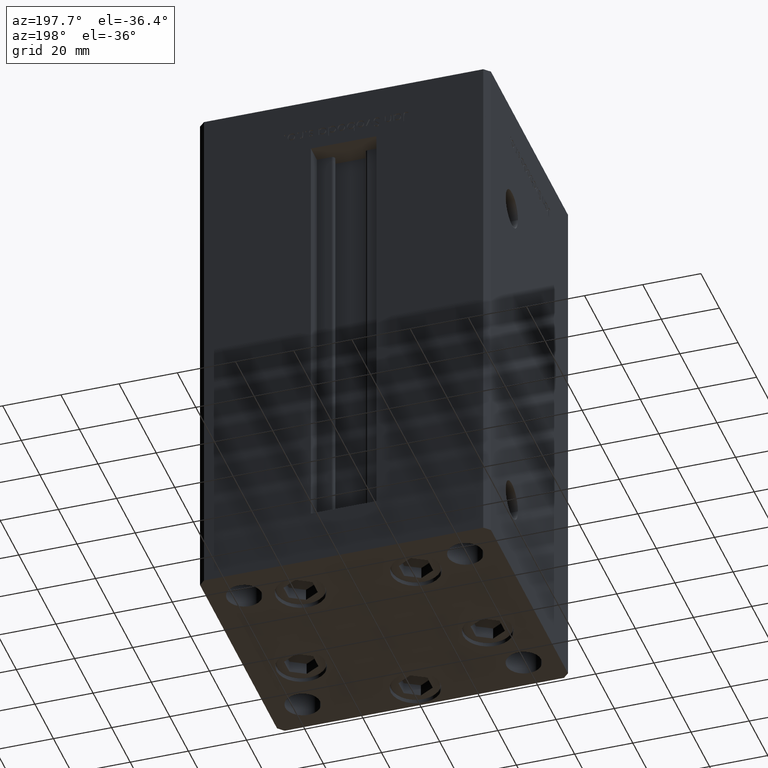
[diagram: clean part render]
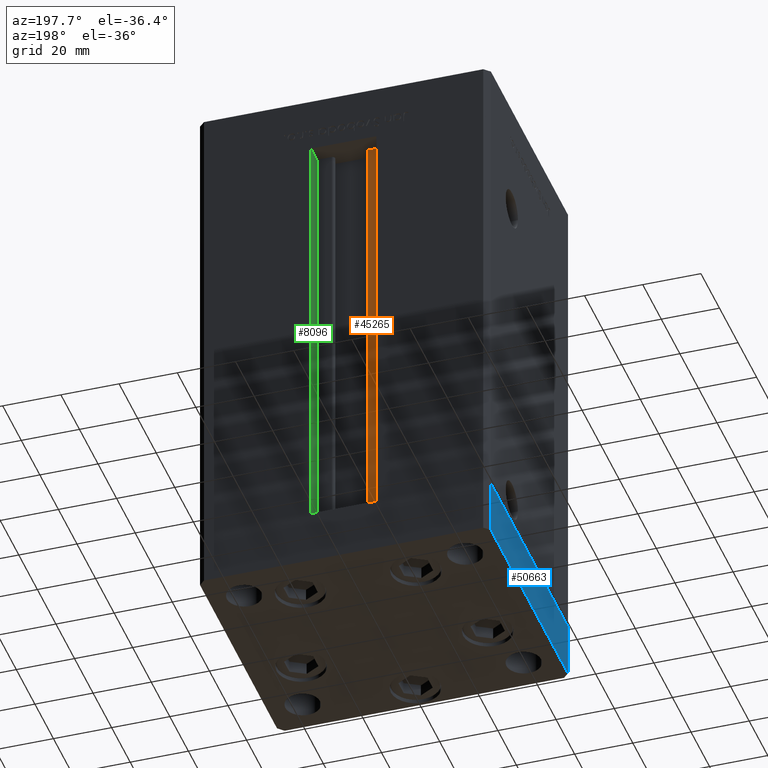
[diagram: same view with three faces highlighted in distinct colors, each labeled with its STEP entity id]
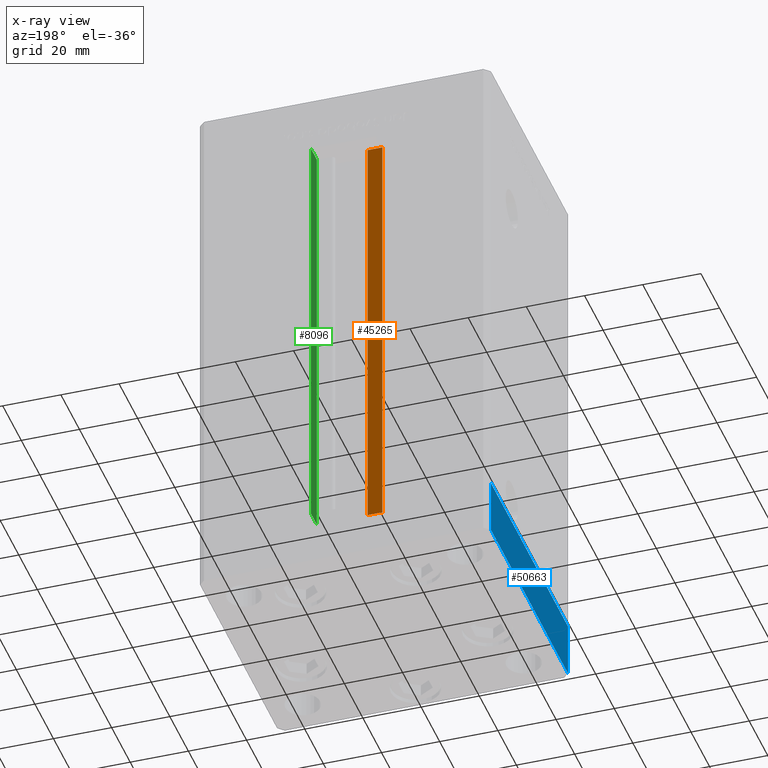
[diagram: x-ray of the same camera — body ghosted, the three highlighted faces saturated]
A machine part, auxiliary view with three faces highlighted in distinct colors.
The next image is the same camera in x-ray (body ghosted, the three faces saturated) — at least one of them is partly hidden behind the body in this view.
Their STEP definitions:

[orange] entity #45265 — the highlighted planar face has unit normal (0, -1, 0).
#1567 = VECTOR ( 'NONE', #40977, 1000.000000000000000 ) ;
#5829 = DIRECTION ( 'NONE',  ( 1.000000000000000000, -0.000000000000000000, -0.000000000000000000 ) ) ;
#9309 = VERTEX_POINT ( 'NONE', #20111 ) ;
#9799 = VECTOR ( 'NONE', #5829, 1000.000000000000000 ) ;
#10050 = CARTESIAN_POINT ( 'NONE',  ( -6.183333333333997928, 36.99999999999999289, 0.000000000000000000 ) ) ;
#10462 = VECTOR ( 'NONE', #38537, 1000.000000000000000 ) ;
#13024 = ORIENTED_EDGE ( 'NONE', *, *, #27079, .F. ) ;
#13742 = LINE ( 'NONE', #10050, #10462 ) ;
#14237 = CARTESIAN_POINT ( 'NONE',  ( -6.183333333333997928, 36.99999999999999289, 0.000000000000000000 ) ) ;
#16087 = VERTEX_POINT ( 'NONE', #35440 ) ;
#18936 = EDGE_CURVE ( 'NONE', #42057, #16087, #21447, .T. ) ;
#19938 = ORIENTED_EDGE ( 'NONE', *, *, #32216, .F. ) ;
#19991 = CARTESIAN_POINT ( 'NONE',  ( -6.183333333333997928, 36.99999999999999289, 0.000000000000000000 ) ) ;
#20111 = CARTESIAN_POINT ( 'NONE',  ( -6.183333333333997928, 36.99999999999999289, 148.5000000000000000 ) ) ;
#21447 = LINE ( 'NONE', #24893, #1567 ) ;
#22118 = ORIENTED_EDGE ( 'NONE', *, *, #18936, .T. ) ;
#24893 = CARTESIAN_POINT ( 'NONE',  ( -11.24999999999999822, 36.99999999999999289, 0.000000000000000000 ) ) ;
#25361 = CARTESIAN_POINT ( 'NONE',  ( -6.183333333333997928, 36.99999999999999289, 0.000000000000000000 ) ) ;
#26582 = VECTOR ( 'NONE', #30131, 1000.000000000000000 ) ;
#27079 = EDGE_CURVE ( 'NONE', #50518, #9309, #13742, .T. ) ;
#27903 = CARTESIAN_POINT ( 'NONE',  ( -11.24999999999999822, 36.99999999999999289, 0.000000000000000000 ) ) ;
#30131 = DIRECTION ( 'NONE',  ( -1.000000000000000000, 0.000000000000000000, 0.000000000000000000 ) ) ;
#30346 = DIRECTION ( 'NONE',  ( 0.000000000000000000, -1.000000000000000000, -0.000000000000000000 ) ) ;
#31018 = EDGE_CURVE ( 'NONE', #9309, #16087, #49675, .T. ) ;
#31399 = ORIENTED_EDGE ( 'NONE', *, *, #31018, .F. ) ;
#32216 = EDGE_CURVE ( 'NONE', #42057, #50518, #37482, .T. ) ;
#33839 = CARTESIAN_POINT ( 'NONE',  ( 0.000000000000000000, 36.99999999999999289, 148.5000000000000000 ) ) ;
#34313 = DIRECTION ( 'NONE',  ( 0.000000000000000000, 0.000000000000000000, -1.000000000000000000 ) ) ;
#35440 = CARTESIAN_POINT ( 'NONE',  ( -11.24999999999999822, 36.99999999999999289, 148.5000000000000000 ) ) ;
#37482 = LINE ( 'NONE', #14237, #9799 ) ;
#38537 = DIRECTION ( 'NONE',  ( -0.000000000000000000, -0.000000000000000000, 1.000000000000000000 ) ) ;
#40977 = DIRECTION ( 'NONE',  ( -0.000000000000000000, -0.000000000000000000, 1.000000000000000000 ) ) ;
#42057 = VERTEX_POINT ( 'NONE', #27903 ) ;
#43011 = FACE_OUTER_BOUND ( 'NONE', #48305, .T. ) ;
#45265 = ADVANCED_FACE ( 'NONE', ( #43011 ), #52170, .F. ) ;
#46250 = AXIS2_PLACEMENT_3D ( 'NONE', #19991, #30346, #34313 ) ;
#48305 = EDGE_LOOP ( 'NONE', ( #13024, #19938, #22118, #31399 ) ) ;
#49675 = LINE ( 'NONE', #33839, #26582 ) ;
#50518 = VERTEX_POINT ( 'NONE', #25361 ) ;
#52170 = PLANE ( 'NONE',  #46250 ) ;

[blue] entity #50663 — the highlighted planar face has unit normal (-1, 0, 0).
#2115 = VECTOR ( 'NONE', #33210, 1000.000000000000000 ) ;
#4226 = LINE ( 'NONE', #36399, #2115 ) ;
#6207 = VERTEX_POINT ( 'NONE', #41309 ) ;
#7115 = VECTOR ( 'NONE', #47290, 1000.000000000000000 ) ;
#8576 = VERTEX_POINT ( 'NONE', #44334 ) ;
#9007 = LINE ( 'NONE', #45679, #27259 ) ;
#9593 = EDGE_CURVE ( 'NONE', #46680, #8576, #4226, .T. ) ;
#12951 = FACE_OUTER_BOUND ( 'NONE', #34772, .T. ) ;
#13486 = DIRECTION ( 'NONE',  ( 0.000000000000000000, 0.000000000000000000, 1.000000000000000000 ) ) ;
#15101 = VECTOR ( 'NONE', #37878, 1000.000000000000000 ) ;
#18727 = DIRECTION ( 'NONE',  ( 1.000000000000000000, 1.003213576468515193E-15, -0.000000000000000000 ) ) ;
#21364 = EDGE_CURVE ( 'NONE', #6207, #8576, #41060, .T. ) ;
#23876 = ORIENTED_EDGE ( 'NONE', *, *, #9593, .F. ) ;
#24582 = EDGE_CURVE ( 'NONE', #44636, #46680, #9007, .T. ) ;
#25232 = CARTESIAN_POINT ( 'NONE',  ( 49.99999999999992184, 41.49999999999998579, -19.00000000000000000 ) ) ;
#26202 = LINE ( 'NONE', #46505, #7115 ) ;
#26736 = EDGE_CURVE ( 'NONE', #44636, #6207, #26202, .T. ) ;
#27259 = VECTOR ( 'NONE', #13486, 1000.000000000000000 ) ;
#27707 = CARTESIAN_POINT ( 'NONE',  ( 50.00000000000000000, -41.49999999999999289, 0.000000000000000000 ) ) ;
#29044 = PLANE ( 'NONE',  #50484 ) ;
#33210 = DIRECTION ( 'NONE',  ( -1.003213576468515193E-15, 1.000000000000000000, 0.000000000000000000 ) ) ;
#34772 = EDGE_LOOP ( 'NONE', ( #23876, #38841, #38410, #39603 ) ) ;
#36399 = CARTESIAN_POINT ( 'NONE',  ( 50.00000000000000000, -41.49999999999999289, 0.000000000000000000 ) ) ;
#37878 = DIRECTION ( 'NONE',  ( 0.000000000000000000, 0.000000000000000000, 1.000000000000000000 ) ) ;
#38410 = ORIENTED_EDGE ( 'NONE', *, *, #26736, .T. ) ;
#38520 = DIRECTION ( 'NONE',  ( -1.003213576468515193E-15, 1.000000000000000000, 0.000000000000000000 ) ) ;
#38841 = ORIENTED_EDGE ( 'NONE', *, *, #24582, .F. ) ;
#38977 = CARTESIAN_POINT ( 'NONE',  ( 50.00000000000000000, -41.49999999999999289, -19.00000000000000000 ) ) ;
#39603 = ORIENTED_EDGE ( 'NONE', *, *, #21364, .T. ) ;
#41060 = LINE ( 'NONE', #25232, #15101 ) ;
#41309 = CARTESIAN_POINT ( 'NONE',  ( 49.99999999999992184, 41.49999999999998579, -19.00000000000000000 ) ) ;
#44334 = CARTESIAN_POINT ( 'NONE',  ( 49.99999999999992184, 41.49999999999998579, 0.000000000000000000 ) ) ;
#44636 = VERTEX_POINT ( 'NONE', #38977 ) ;
#45679 = CARTESIAN_POINT ( 'NONE',  ( 50.00000000000000000, -41.49999999999999289, -19.00000000000000000 ) ) ;
#46505 = CARTESIAN_POINT ( 'NONE',  ( 50.00000000000000000, -41.49999999999999289, -19.00000000000000000 ) ) ;
#46680 = VERTEX_POINT ( 'NONE', #27707 ) ;
#46953 = CARTESIAN_POINT ( 'NONE',  ( 50.00000000000000000, -41.49999999999999289, -19.00000000000000000 ) ) ;
#47290 = DIRECTION ( 'NONE',  ( -1.003213576468515193E-15, 1.000000000000000000, 0.000000000000000000 ) ) ;
#50484 = AXIS2_PLACEMENT_3D ( 'NONE', #46953, #18727, #38520 ) ;
#50663 = ADVANCED_FACE ( 'NONE', ( #12951 ), #29044, .T. ) ;

[green] entity #8096 — the highlighted planar face has unit normal (1, 0, 0).
#66 = CARTESIAN_POINT ( 'NONE',  ( 11.24999999999999822, 43.50000000000000000, 0.000000000000000000 ) ) ;
#921 = VERTEX_POINT ( 'NONE', #2554 ) ;
#2554 = CARTESIAN_POINT ( 'NONE',  ( 11.24999999999999822, 36.99999999999999289, 148.5000000000000000 ) ) ;
#2844 = LINE ( 'NONE', #51394, #6339 ) ;
#3851 = EDGE_CURVE ( 'NONE', #38135, #921, #34479, .T. ) ;
#5464 = LINE ( 'NONE', #5728, #24040 ) ;
#5728 = CARTESIAN_POINT ( 'NONE',  ( 11.24999999999999822, 36.99999999999999289, 0.000000000000000000 ) ) ;
#6339 = VECTOR ( 'NONE', #27627, 1000.000000000000000 ) ;
#6688 = DIRECTION ( 'NONE',  ( 1.000000000000000000, -0.000000000000000000, 0.000000000000000000 ) ) ;
#7161 = AXIS2_PLACEMENT_3D ( 'NONE', #38342, #6688, #18028 ) ;
#8096 = ADVANCED_FACE ( 'NONE', ( #35173 ), #42555, .F. ) ;
#9764 = EDGE_CURVE ( 'NONE', #30150, #921, #2844, .T. ) ;
#10077 = EDGE_CURVE ( 'NONE', #30150, #33568, #5464, .T. ) ;
#10315 = ORIENTED_EDGE ( 'NONE', *, *, #3851, .F. ) ;
#10409 = ORIENTED_EDGE ( 'NONE', *, *, #9764, .T. ) ;
#18028 = DIRECTION ( 'NONE',  ( 0.000000000000000000, 0.000000000000000000, -1.000000000000000000 ) ) ;
#19106 = VECTOR ( 'NONE', #43439, 1000.000000000000000 ) ;
#19520 = CARTESIAN_POINT ( 'NONE',  ( 11.24999999999999112, 43.50000000000000000, 148.5000000000000000 ) ) ;
#21762 = CARTESIAN_POINT ( 'NONE',  ( 11.24999999999999822, 43.50000000000000000, 0.000000000000000000 ) ) ;
#21830 = EDGE_LOOP ( 'NONE', ( #41268, #51711, #10409, #10315 ) ) ;
#23811 = LINE ( 'NONE', #66, #51780 ) ;
#24040 = VECTOR ( 'NONE', #50023, 1000.000000000000000 ) ;
#24338 = DIRECTION ( 'NONE',  ( -0.000000000000000000, -0.000000000000000000, 1.000000000000000000 ) ) ;
#26845 = EDGE_CURVE ( 'NONE', #33568, #38135, #23811, .T. ) ;
#27627 = DIRECTION ( 'NONE',  ( -0.000000000000000000, -0.000000000000000000, 1.000000000000000000 ) ) ;
#30150 = VERTEX_POINT ( 'NONE', #46285 ) ;
#33568 = VERTEX_POINT ( 'NONE', #21762 ) ;
#34479 = LINE ( 'NONE', #34735, #19106 ) ;
#34735 = CARTESIAN_POINT ( 'NONE',  ( 11.24999999999999822, 0.000000000000000000, 148.5000000000000000 ) ) ;
#35173 = FACE_OUTER_BOUND ( 'NONE', #21830, .T. ) ;
#38135 = VERTEX_POINT ( 'NONE', #19520 ) ;
#38342 = CARTESIAN_POINT ( 'NONE',  ( 11.24999999999999822, 36.99999999999999289, 0.000000000000000000 ) ) ;
#41268 = ORIENTED_EDGE ( 'NONE', *, *, #26845, .F. ) ;
#42555 = PLANE ( 'NONE',  #7161 ) ;
#43439 = DIRECTION ( 'NONE',  ( -0.000000000000000000, -1.000000000000000000, 0.000000000000000000 ) ) ;
#46285 = CARTESIAN_POINT ( 'NONE',  ( 11.24999999999999822, 36.99999999999999289, 0.000000000000000000 ) ) ;
#50023 = DIRECTION ( 'NONE',  ( 0.000000000000000000, 1.000000000000000000, 0.000000000000000000 ) ) ;
#51394 = CARTESIAN_POINT ( 'NONE',  ( 11.24999999999999822, 36.99999999999999289, 0.000000000000000000 ) ) ;
#51711 = ORIENTED_EDGE ( 'NONE', *, *, #10077, .F. ) ;
#51780 = VECTOR ( 'NONE', #24338, 1000.000000000000000 ) ;